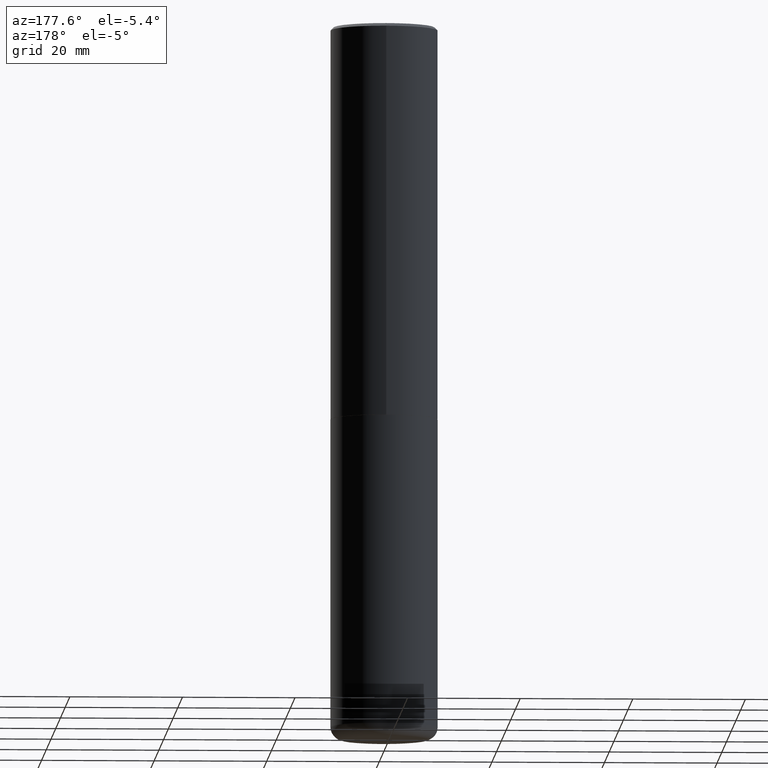
[diagram: clean part render]
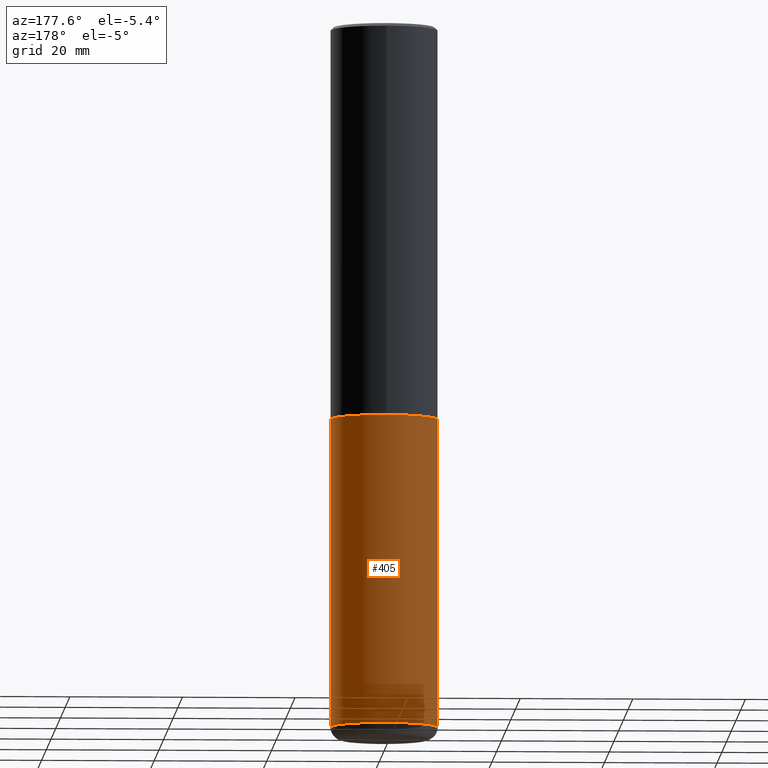
[diagram: same view with one face highlighted and labeled with its STEP entity id]
A machine part, auxiliary view. The second image highlights one B-rep face of the part: STEP entity #405.
In plain terms, the highlighted cylindrical surface (partial cylindrical patch) has radius 9.525 mm, axis along (-0, 0, 1).
Its self-contained STEP definition (entity closure, byte-faithful):
#42 = CARTESIAN_POINT ( 'NONE',  ( -0.3749999999999999445, -1.447863811461947092E-14, -4.910000000000000142 ) ) ;
#46 = FACE_OUTER_BOUND ( 'NONE', #50, .T. ) ;
#47 = VERTEX_POINT ( 'NONE', #165 ) ;
#48 = EDGE_CURVE ( 'NONE', #190, #250, #195, .T. ) ;
#50 = EDGE_LOOP ( 'NONE', ( #84, #331, #226, #304 ) ) ;
#54 = EDGE_CURVE ( 'NONE', #316, #250, #58, .T. ) ;
#58 = CIRCLE ( 'NONE', #305, 0.3750000000000000555 ) ;
#59 = AXIS2_PLACEMENT_3D ( 'NONE', #311, #150, #380 ) ;
#84 = ORIENTED_EDGE ( 'NONE', *, *, #371, .T. ) ;
#87 = VECTOR ( 'NONE', #115, 39.37007874015748143 ) ;
#92 = DIRECTION ( 'NONE',  ( -2.445468806185136597E-29, 3.491481338843145583E-15, 1.000000000000000000 ) ) ;
#115 = DIRECTION ( 'NONE',  ( -2.445468806185136877E-29, 3.491481338843145188E-15, 1.000000000000000000 ) ) ;
#133 = CIRCLE ( 'NONE', #59, 0.3749999999999999445 ) ;
#135 = CARTESIAN_POINT ( 'NONE',  ( -0.3750000000000000555, -1.070783826866887333E-14, -2.750000000000000000 ) ) ;
#150 = DIRECTION ( 'NONE',  ( -2.445468806185136597E-29, 3.491481338843145583E-15, 1.000000000000000000 ) ) ;
#159 = DIRECTION ( 'NONE',  ( -2.445468806185136877E-29, 3.491481338843145188E-15, 1.000000000000000000 ) ) ;
#165 = CARTESIAN_POINT ( 'NONE',  ( 0.3749999999999999445, -1.976178437785219664E-14, -4.910000000000000142 ) ) ;
#183 = CARTESIAN_POINT ( 'NONE',  ( 0.000000000000000000, 0.000000000000000000, 0.000000000000000000 ) ) ;
#190 = VERTEX_POINT ( 'NONE', #42 ) ;
#195 = LINE ( 'NONE', #360, #210 ) ;
#210 = VECTOR ( 'NONE', #159, 39.37007874015748143 ) ;
#219 = CARTESIAN_POINT ( 'NONE',  ( 0.3749999999999999445, -2.618611004132349622E-15, 1.828566290923475642E-29 ) ) ;
#223 = DIRECTION ( 'NONE',  ( 1.000000000000000000, -6.982962677686266711E-15, 4.876176775795935793E-29 ) ) ;
#226 = ORIENTED_EDGE ( 'NONE', *, *, #54, .F. ) ;
#232 = DIRECTION ( 'NONE',  ( 1.000000000000000000, -6.982962677686266711E-15, 0.000000000000000000 ) ) ;
#235 = CARTESIAN_POINT ( 'NONE',  ( 0.3750000000000000555, -1.222018468595100145E-14, -2.750000000000000000 ) ) ;
#249 = LINE ( 'NONE', #219, #87 ) ;
#250 = VERTEX_POINT ( 'NONE', #135 ) ;
#287 = CARTESIAN_POINT ( 'NONE',  ( 6.725039217009124520E-29, -9.601573681818649859E-15, -2.750000000000000000 ) ) ;
#304 = ORIENTED_EDGE ( 'NONE', *, *, #365, .F. ) ;
#305 = AXIS2_PLACEMENT_3D ( 'NONE', #287, #92, #232 ) ;
#311 = CARTESIAN_POINT ( 'NONE',  ( 1.200725183836902132E-28, -1.714317337371984662E-14, -4.910000000000000142 ) ) ;
#315 = CYLINDRICAL_SURFACE ( 'NONE', #329, 0.3749999999999999445 ) ;
#316 = VERTEX_POINT ( 'NONE', #235 ) ;
#329 = AXIS2_PLACEMENT_3D ( 'NONE', #183, #407, #223 ) ;
#331 = ORIENTED_EDGE ( 'NONE', *, *, #48, .T. ) ;
#360 = CARTESIAN_POINT ( 'NONE',  ( -0.3749999999999999445, 2.664535259100375303E-15, -1.844600658845589318E-29 ) ) ;
#365 = EDGE_CURVE ( 'NONE', #47, #316, #249, .T. ) ;
#371 = EDGE_CURVE ( 'NONE', #47, #190, #133, .T. ) ;
#380 = DIRECTION ( 'NONE',  ( 1.000000000000000000, -6.982962677686269077E-15, 0.000000000000000000 ) ) ;
#405 = ADVANCED_FACE ( 'NONE', ( #46 ), #315, .T. ) ;
#407 = DIRECTION ( 'NONE',  ( -2.445468806185136597E-29, 3.491481338843145583E-15, 1.000000000000000000 ) ) ;